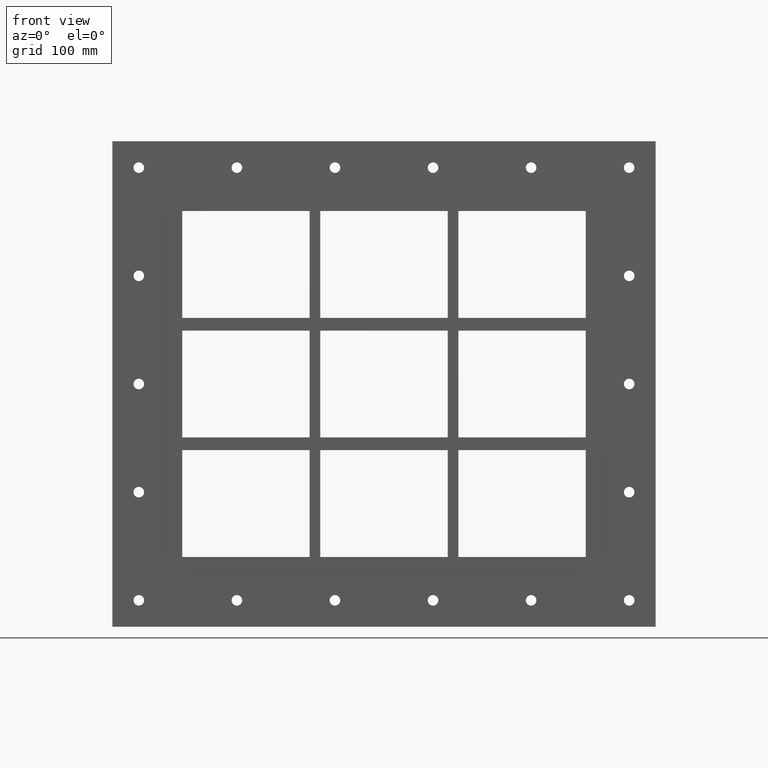
[diagram: clean part render]
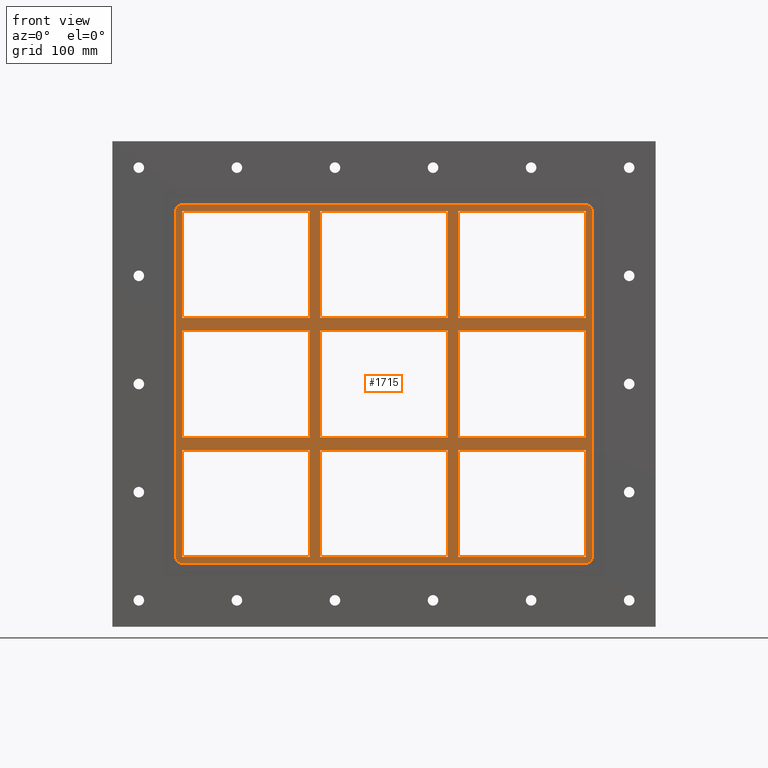
[diagram: same view with one face highlighted and labeled with its STEP entity id]
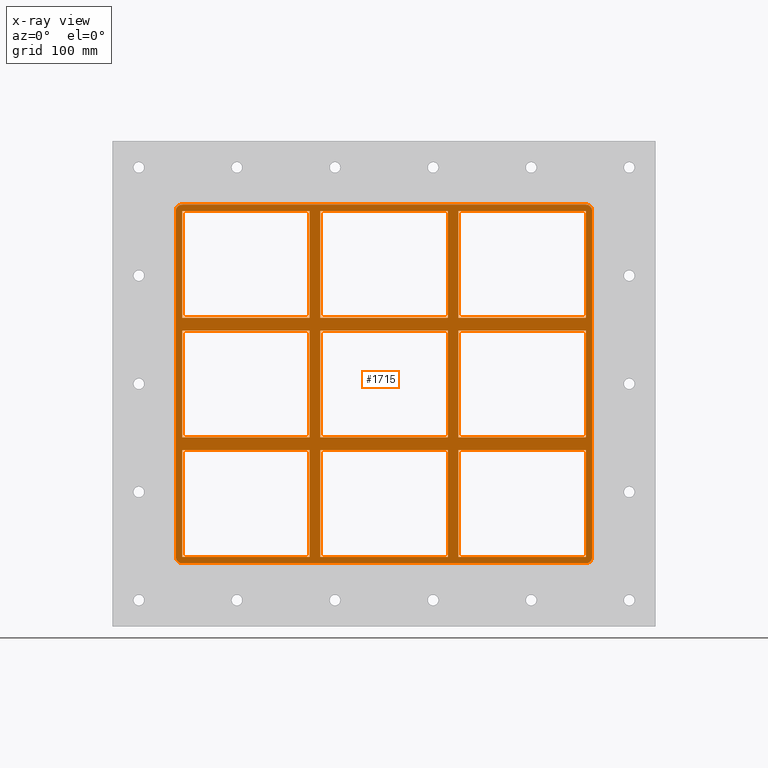
[diagram: x-ray of the same camera — body ghosted, the highlighted face saturated]
A machine part, front view. The second image highlights one B-rep face of the part: STEP entity #1715.
The next image is the same camera in x-ray: the body ghosted, the highlighted face saturated — about 0% of this face is hidden behind the body in this view.
In plain terms, the highlighted planar face has unit normal (0, 1, 0).
Its self-contained STEP definition (entity closure, byte-faithful):
#577=CARTESIAN_POINT('',(-70.250000000001364,-3.0,50.499999999990628));
#578=VERTEX_POINT('',#577);
#587=CARTESIAN_POINT('',(-190.74999999999972,-3.0,50.499999999990628));
#588=VERTEX_POINT('',#587);
#589=CARTESIAN_POINT('',(-70.250000000001364,-3.0,50.499999999990642));
#590=DIRECTION('',(-1.0,0.0,0.0));
#591=VECTOR('',#590,120.49999999999841);
#592=LINE('',#589,#591);
#593=EDGE_CURVE('',#578,#588,#592,.T.);
#619=CARTESIAN_POINT('',(70.250000000003638,-3.0,50.499999999990656));
#620=VERTEX_POINT('',#619);
#635=CARTESIAN_POINT('',(190.74999999999818,-3.0,50.499999999990671));
#636=VERTEX_POINT('',#635);
#643=CARTESIAN_POINT('',(190.74999999999818,-3.0,50.499999999990671));
#644=DIRECTION('',(-1.0,0.0,0.0));
#645=VECTOR('',#644,120.49999999999454);
#646=LINE('',#643,#645);
#647=EDGE_CURVE('',#636,#620,#646,.T.);
#657=CARTESIAN_POINT('',(60.249999999998636,-3.0,50.499999999990656));
#658=VERTEX_POINT('',#657);
#667=CARTESIAN_POINT('',(-60.249999999996362,-3.0,50.499999999990628));
#668=VERTEX_POINT('',#667);
#669=CARTESIAN_POINT('',(60.249999999998636,-3.0,50.499999999990656));
#670=DIRECTION('',(-1.0,0.0,0.0));
#671=VECTOR('',#670,120.499999999995);
#672=LINE('',#669,#671);
#673=EDGE_CURVE('',#658,#668,#672,.T.);
#699=CARTESIAN_POINT('',(-70.250000000001364,-3.0,62.499999999999893));
#700=VERTEX_POINT('',#699);
#715=CARTESIAN_POINT('',(-190.74999999999972,-3.0,62.499999999999893));
#716=VERTEX_POINT('',#715);
#723=CARTESIAN_POINT('',(-190.74999999999972,-3.0,62.499999999999893));
#724=DIRECTION('',(1.0,0.0,0.0));
#725=VECTOR('',#724,120.49999999999834);
#726=LINE('',#723,#725);
#727=EDGE_CURVE('',#716,#700,#726,.T.);
#737=CARTESIAN_POINT('',(70.250000000003638,-3.0,62.499999999999893));
#738=VERTEX_POINT('',#737);
#747=CARTESIAN_POINT('',(190.75,-3.0,62.499999999999893));
#748=VERTEX_POINT('',#747);
#749=CARTESIAN_POINT('',(70.250000000003638,-3.0,62.499999999999893));
#750=DIRECTION('',(1.0,0.0,0.0));
#751=VECTOR('',#750,120.49999999999636);
#752=LINE('',#749,#751);
#753=EDGE_CURVE('',#738,#748,#752,.T.);
#779=CARTESIAN_POINT('',(60.249999999998636,-3.0,62.499999999999893));
#780=VERTEX_POINT('',#779);
#795=CARTESIAN_POINT('',(-60.249999999996362,-3.0,62.499999999999893));
#796=VERTEX_POINT('',#795);
#803=CARTESIAN_POINT('',(-60.249999999996362,-3.0,62.499999999999893));
#804=DIRECTION('',(1.0,0.0,0.0));
#805=VECTOR('',#804,120.499999999995);
#806=LINE('',#803,#805);
#807=EDGE_CURVE('',#796,#780,#806,.T.);
#826=CARTESIAN_POINT('',(-190.75000000000003,-3.0,163.50000000000009));
#827=VERTEX_POINT('',#826);
#834=CARTESIAN_POINT('',(-190.75000000000003,-3.0,62.499999999999901));
#835=DIRECTION('',(0.0,0.0,1.0));
#836=VECTOR('',#835,101.00000000000016);
#837=LINE('',#834,#836);
#838=EDGE_CURVE('',#716,#827,#837,.T.);
#857=CARTESIAN_POINT('',(190.75,-3.0,-50.500000000000114));
#858=VERTEX_POINT('',#857);
#865=CARTESIAN_POINT('',(190.75000000000011,-3.0,50.499999999990678));
#866=DIRECTION('',(0.0,0.0,-1.0));
#867=VECTOR('',#866,100.99999999999079);
#868=LINE('',#865,#867);
#869=EDGE_CURVE('',#636,#858,#868,.T.);
#880=CARTESIAN_POINT('',(190.75000000000011,-3.0,163.50000000000009));
#881=VERTEX_POINT('',#880);
#882=CARTESIAN_POINT('',(190.75000000000011,-3.0,163.50000000000009));
#883=DIRECTION('',(0.0,0.0,-1.0));
#884=VECTOR('',#883,101.00000000000018);
#885=LINE('',#882,#884);
#886=EDGE_CURVE('',#881,#748,#885,.T.);
#911=CARTESIAN_POINT('',(60.249999999998622,-3.0,163.50000000000009));
#912=VERTEX_POINT('',#911);
#913=CARTESIAN_POINT('',(60.249999999998636,-3.0,62.499999999999886));
#914=DIRECTION('',(0.0,0.0,1.0));
#915=VECTOR('',#914,101.0000000000002);
#916=LINE('',#913,#915);
#917=EDGE_CURVE('',#780,#912,#916,.T.);
#950=CARTESIAN_POINT('',(70.250000000003638,-3.0,163.50000000000009));
#951=VERTEX_POINT('',#950);
#958=CARTESIAN_POINT('',(70.250000000003638,-3.0,163.50000000000009));
#959=DIRECTION('',(0.0,0.0,-1.0));
#960=VECTOR('',#959,101.0000000000002);
#961=LINE('',#958,#960);
#962=EDGE_CURVE('',#951,#738,#961,.T.);
#973=CARTESIAN_POINT('',(-70.250000000001393,-3.0,163.50000000000009));
#974=VERTEX_POINT('',#973);
#975=CARTESIAN_POINT('',(-70.250000000001378,-3.0,62.499999999999886));
#976=DIRECTION('',(0.0,0.0,1.0));
#977=VECTOR('',#976,101.0000000000002);
#978=LINE('',#975,#977);
#979=EDGE_CURVE('',#700,#974,#978,.T.);
#1012=CARTESIAN_POINT('',(-70.25000000000135,-3.0,-50.500000000000114));
#1013=VERTEX_POINT('',#1012);
#1020=CARTESIAN_POINT('',(-70.25000000000135,-3.0,-50.500000000000114));
#1021=DIRECTION('',(0.0,0.0,1.0));
#1022=VECTOR('',#1021,100.99999999999073);
#1023=LINE('',#1020,#1022);
#1024=EDGE_CURVE('',#1013,#578,#1023,.T.);
#1043=CARTESIAN_POINT('',(-60.249999999996362,-3.0,163.50000000000009));
#1044=VERTEX_POINT('',#1043);
#1051=CARTESIAN_POINT('',(-60.249999999996362,-3.0,163.50000000000009));
#1052=DIRECTION('',(0.0,0.0,-1.0));
#1053=VECTOR('',#1052,101.0000000000002);
#1054=LINE('',#1051,#1053);
#1055=EDGE_CURVE('',#1044,#796,#1054,.T.);
#1339=CARTESIAN_POINT('',(60.24999999999865,-3.0,-50.500000000000114));
#1340=VERTEX_POINT('',#1339);
#1347=CARTESIAN_POINT('',(60.24999999999865,-3.0,-50.500000000000114));
#1348=DIRECTION('',(0.0,0.0,1.0));
#1349=VECTOR('',#1348,100.99999999999076);
#1350=LINE('',#1347,#1349);
#1351=EDGE_CURVE('',#1340,#658,#1350,.T.);
#1361=CARTESIAN_POINT('',(60.24999999999865,-3.0,-62.500000000009365));
#1362=VERTEX_POINT('',#1361);
#1370=CARTESIAN_POINT('',(60.249999999998671,-3.0,-163.50000000000009));
#1371=VERTEX_POINT('',#1370);
#1378=CARTESIAN_POINT('',(60.249999999998671,-3.0,-163.50000000000009));
#1379=DIRECTION('',(0.0,0.0,1.0));
#1380=VECTOR('',#1379,100.99999999999072);
#1381=LINE('',#1378,#1380);
#1382=EDGE_CURVE('',#1371,#1362,#1381,.T.);
#1393=CARTESIAN_POINT('',(70.250000000003638,-3.0,-50.500000000000114));
#1394=VERTEX_POINT('',#1393);
#1395=CARTESIAN_POINT('',(70.250000000003638,-3.0,50.499999999990663));
#1396=DIRECTION('',(0.0,0.0,-1.0));
#1397=VECTOR('',#1396,100.99999999999078);
#1398=LINE('',#1395,#1397);
#1399=EDGE_CURVE('',#620,#1394,#1398,.T.);
#1416=CARTESIAN_POINT('',(70.250000000003638,-3.0,-62.500000000009344));
#1417=VERTEX_POINT('',#1416);
#1424=CARTESIAN_POINT('',(70.250000000003638,-3.0,-163.49999999998431));
#1425=VERTEX_POINT('',#1424);
#1426=CARTESIAN_POINT('',(70.250000000003638,-3.0,-62.500000000009351));
#1427=DIRECTION('',(0.0,0.0,-1.0));
#1428=VECTOR('',#1427,100.99999999997499);
#1429=LINE('',#1426,#1428);
#1430=EDGE_CURVE('',#1417,#1425,#1429,.T.);
#1449=CARTESIAN_POINT('',(-60.249999999996362,-3.0,-163.49999999998431));
#1450=VERTEX_POINT('',#1449);
#1457=CARTESIAN_POINT('',(60.249999999998678,-3.0,-163.50000000000009));
#1458=DIRECTION('',(-1.0,0.0,0.0));
#1459=VECTOR('',#1458,120.49999999999504);
#1460=LINE('',#1457,#1459);
#1461=EDGE_CURVE('',#1371,#1450,#1460,.T.);
#1472=CARTESIAN_POINT('',(190.75000000000011,-3.0,-163.50000000000009));
#1473=VERTEX_POINT('',#1472);
#1474=CARTESIAN_POINT('',(190.75000000000011,-3.0,-163.50000000000009));
#1475=DIRECTION('',(-1.0,0.0,0.0));
#1476=VECTOR('',#1475,120.49999999999646);
#1477=LINE('',#1474,#1476);
#1478=EDGE_CURVE('',#1473,#1425,#1477,.T.);
#1490=CARTESIAN_POINT('',(0.0,-3.0,0.0));
#1491=DIRECTION('',(0.0,1.0,0.0));
#1492=DIRECTION('',(0.0,0.0,1.0));
#1493=AXIS2_PLACEMENT_3D('',#1490,#1491,#1492);
#1494=PLANE('',#1493);
#1495=CARTESIAN_POINT('',(196.75000000000006,-3.0,-163.5));
#1496=VERTEX_POINT('',#1495);
#1497=CARTESIAN_POINT('',(190.75000000000003,-3.0,-169.50000000000003));
#1498=VERTEX_POINT('',#1497);
#1499=CARTESIAN_POINT('',(190.75000000000003,-3.0,-163.5));
#1500=DIRECTION('',(0.0,1.0,0.0));
#1501=DIRECTION('',(0.707106781186548,0.0,-0.707106781186548));
#1502=AXIS2_PLACEMENT_3D('',#1499,#1500,#1501);
#1503=CIRCLE('',#1502,6.000000000000002);
#1504=EDGE_CURVE('',#1496,#1498,#1503,.T.);
#1505=ORIENTED_EDGE('',*,*,#1504,.F.);
#1506=CARTESIAN_POINT('',(196.75000000000006,-3.0,163.5));
#1507=VERTEX_POINT('',#1506);
#1508=CARTESIAN_POINT('',(196.75000000000006,-3.0,-163.50000000000003));
#1509=DIRECTION('',(0.0,0.0,1.0));
#1510=VECTOR('',#1509,327.0);
#1511=LINE('',#1508,#1510);
#1512=EDGE_CURVE('',#1496,#1507,#1511,.T.);
#1513=ORIENTED_EDGE('',*,*,#1512,.T.);
#1514=CARTESIAN_POINT('',(190.75000000000003,-3.0,169.50000000000003));
#1515=VERTEX_POINT('',#1514);
#1516=CARTESIAN_POINT('',(190.75000000000003,-3.0,163.5));
#1517=DIRECTION('',(0.0,1.0,0.0));
#1518=DIRECTION('',(0.707106781186548,0.0,0.707106781186548));
#1519=AXIS2_PLACEMENT_3D('',#1516,#1517,#1518);
#1520=CIRCLE('',#1519,6.000000000000002);
#1521=EDGE_CURVE('',#1515,#1507,#1520,.T.);
#1522=ORIENTED_EDGE('',*,*,#1521,.F.);
#1523=CARTESIAN_POINT('',(-190.75000000000003,-3.0,169.50000000000003));
#1524=VERTEX_POINT('',#1523);
#1525=CARTESIAN_POINT('',(190.75,-3.0,169.50000000000003));
#1526=DIRECTION('',(-1.0,0.0,0.0));
#1527=VECTOR('',#1526,381.50000000000006);
#1528=LINE('',#1525,#1527);
#1529=EDGE_CURVE('',#1515,#1524,#1528,.T.);
#1530=ORIENTED_EDGE('',*,*,#1529,.T.);
#1531=CARTESIAN_POINT('',(-196.75000000000006,-3.0,163.5));
#1532=VERTEX_POINT('',#1531);
#1533=CARTESIAN_POINT('',(-190.75000000000003,-3.0,163.5));
#1534=DIRECTION('',(0.0,1.0,0.0));
#1535=DIRECTION('',(-0.707106781186548,0.0,0.707106781186548));
#1536=AXIS2_PLACEMENT_3D('',#1533,#1534,#1535);
#1537=CIRCLE('',#1536,6.000000000000002);
#1538=EDGE_CURVE('',#1532,#1524,#1537,.T.);
#1539=ORIENTED_EDGE('',*,*,#1538,.F.);
#1540=CARTESIAN_POINT('',(-196.75000000000006,-3.0,-163.5));
#1541=VERTEX_POINT('',#1540);
#1542=CARTESIAN_POINT('',(-196.75000000000006,-3.0,163.50000000000003));
#1543=DIRECTION('',(0.0,0.0,-1.0));
#1544=VECTOR('',#1543,327.0);
#1545=LINE('',#1542,#1544);
#1546=EDGE_CURVE('',#1532,#1541,#1545,.T.);
#1547=ORIENTED_EDGE('',*,*,#1546,.T.);
#1548=CARTESIAN_POINT('',(-190.75000000000003,-3.0,-169.50000000000003));
#1549=VERTEX_POINT('',#1548);
#1550=CARTESIAN_POINT('',(-190.75000000000003,-3.0,-163.5));
#1551=DIRECTION('',(0.0,1.0,0.0));
#1552=DIRECTION('',(-0.707106781186548,0.0,-0.707106781186548));
#1553=AXIS2_PLACEMENT_3D('',#1550,#1551,#1552);
#1554=CIRCLE('',#1553,6.000000000000002);
#1555=EDGE_CURVE('',#1549,#1541,#1554,.T.);
#1556=ORIENTED_EDGE('',*,*,#1555,.F.);
#1557=CARTESIAN_POINT('',(-190.75,-3.0,-169.50000000000003));
#1558=DIRECTION('',(1.0,0.0,0.0));
#1559=VECTOR('',#1558,381.50000000000006);
#1560=LINE('',#1557,#1559);
#1561=EDGE_CURVE('',#1549,#1498,#1560,.T.);
#1562=ORIENTED_EDGE('',*,*,#1561,.T.);
#1563=EDGE_LOOP('',(#1505,#1513,#1522,#1530,#1539,#1547,#1556,#1562));
#1564=FACE_OUTER_BOUND('',#1563,.T.);
#1565=ORIENTED_EDGE('',*,*,#838,.T.);
#1566=CARTESIAN_POINT('',(-190.75000000000003,-3.0,163.50000000000006));
#1567=DIRECTION('',(1.0,0.0,0.0));
#1568=VECTOR('',#1567,120.49999999999864);
#1569=LINE('',#1566,#1568);
#1570=EDGE_CURVE('',#827,#974,#1569,.T.);
#1571=ORIENTED_EDGE('',*,*,#1570,.T.);
#1572=ORIENTED_EDGE('',*,*,#979,.F.);
#1573=ORIENTED_EDGE('',*,*,#727,.F.);
#1574=EDGE_LOOP('',(#1565,#1571,#1572,#1573));
#1575=FACE_BOUND('',#1574,.T.);
#1576=ORIENTED_EDGE('',*,*,#869,.T.);
#1577=CARTESIAN_POINT('',(70.250000000003638,-3.0,-50.500000000000114));
#1578=DIRECTION('',(1.0,0.0,0.0));
#1579=VECTOR('',#1578,120.49999999999636);
#1580=LINE('',#1577,#1579);
#1581=EDGE_CURVE('',#1394,#858,#1580,.T.);
#1582=ORIENTED_EDGE('',*,*,#1581,.F.);
#1583=ORIENTED_EDGE('',*,*,#1399,.F.);
#1584=ORIENTED_EDGE('',*,*,#647,.F.);
#1585=EDGE_LOOP('',(#1576,#1582,#1583,#1584));
#1586=FACE_BOUND('',#1585,.T.);
#1587=ORIENTED_EDGE('',*,*,#1351,.F.);
#1588=CARTESIAN_POINT('',(-60.249999999996362,-3.0,-50.500000000000114));
#1589=VERTEX_POINT('',#1588);
#1590=CARTESIAN_POINT('',(-60.249999999996362,-3.0,-50.500000000000114));
#1591=DIRECTION('',(1.0,0.0,0.0));
#1592=VECTOR('',#1591,120.49999999999503);
#1593=LINE('',#1590,#1592);
#1594=EDGE_CURVE('',#1589,#1340,#1593,.T.);
#1595=ORIENTED_EDGE('',*,*,#1594,.F.);
#1596=CARTESIAN_POINT('',(-60.249999999996362,-3.0,50.499999999990621));
#1597=DIRECTION('',(0.0,0.0,-1.0));
#1598=VECTOR('',#1597,100.99999999999073);
#1599=LINE('',#1596,#1598);
#1600=EDGE_CURVE('',#668,#1589,#1599,.T.);
#1601=ORIENTED_EDGE('',*,*,#1600,.F.);
#1602=ORIENTED_EDGE('',*,*,#673,.F.);
#1603=EDGE_LOOP('',(#1587,#1595,#1601,#1602));
#1604=FACE_BOUND('',#1603,.T.);
#1605=ORIENTED_EDGE('',*,*,#807,.F.);
#1606=ORIENTED_EDGE('',*,*,#1055,.F.);
#1607=CARTESIAN_POINT('',(-60.249999999996362,-3.0,163.50000000000006));
#1608=DIRECTION('',(1.0,0.0,0.0));
#1609=VECTOR('',#1608,120.49999999999498);
#1610=LINE('',#1607,#1609);
#1611=EDGE_CURVE('',#1044,#912,#1610,.T.);
#1612=ORIENTED_EDGE('',*,*,#1611,.T.);
#1613=ORIENTED_EDGE('',*,*,#917,.F.);
#1614=EDGE_LOOP('',(#1605,#1606,#1612,#1613));
#1615=FACE_BOUND('',#1614,.T.);
#1616=ORIENTED_EDGE('',*,*,#593,.F.);
#1617=ORIENTED_EDGE('',*,*,#1024,.F.);
#1618=CARTESIAN_POINT('',(-190.74999999999972,-3.0,-50.500000000000114));
#1619=VERTEX_POINT('',#1618);
#1620=CARTESIAN_POINT('',(-190.74999999999972,-3.0,-50.500000000000114));
#1621=DIRECTION('',(1.0,0.0,0.0));
#1622=VECTOR('',#1621,120.49999999999835);
#1623=LINE('',#1620,#1622);
#1624=EDGE_CURVE('',#1619,#1013,#1623,.T.);
#1625=ORIENTED_EDGE('',*,*,#1624,.F.);
#1626=CARTESIAN_POINT('',(-190.75000000000003,-3.0,-50.500000000000114));
#1627=DIRECTION('',(0.0,0.0,1.0));
#1628=VECTOR('',#1627,100.99999999999075);
#1629=LINE('',#1626,#1628);
#1630=EDGE_CURVE('',#1619,#588,#1629,.T.);
#1631=ORIENTED_EDGE('',*,*,#1630,.T.);
#1632=EDGE_LOOP('',(#1616,#1617,#1625,#1631));
#1633=FACE_BOUND('',#1632,.T.);
#1634=ORIENTED_EDGE('',*,*,#753,.F.);
#1635=ORIENTED_EDGE('',*,*,#962,.F.);
#1636=CARTESIAN_POINT('',(70.250000000003652,-3.0,163.50000000000006));
#1637=DIRECTION('',(1.0,0.0,0.0));
#1638=VECTOR('',#1637,120.49999999999646);
#1639=LINE('',#1636,#1638);
#1640=EDGE_CURVE('',#951,#881,#1639,.T.);
#1641=ORIENTED_EDGE('',*,*,#1640,.T.);
#1642=ORIENTED_EDGE('',*,*,#886,.T.);
#1643=EDGE_LOOP('',(#1634,#1635,#1641,#1642));
#1644=FACE_BOUND('',#1643,.T.);
#1645=ORIENTED_EDGE('',*,*,#1461,.T.);
#1646=CARTESIAN_POINT('',(-60.249999999996362,-3.0,-62.500000000009365));
#1647=VERTEX_POINT('',#1646);
#1648=CARTESIAN_POINT('',(-60.249999999996362,-3.0,-62.500000000009379));
#1649=DIRECTION('',(0.0,0.0,-1.0));
#1650=VECTOR('',#1649,100.99999999997496);
#1651=LINE('',#1648,#1650);
#1652=EDGE_CURVE('',#1647,#1450,#1651,.T.);
#1653=ORIENTED_EDGE('',*,*,#1652,.F.);
#1654=CARTESIAN_POINT('',(60.249999999998664,-3.0,-62.500000000009351));
#1655=DIRECTION('',(-1.0,0.0,0.0));
#1656=VECTOR('',#1655,120.49999999999503);
#1657=LINE('',#1654,#1656);
#1658=EDGE_CURVE('',#1362,#1647,#1657,.T.);
#1659=ORIENTED_EDGE('',*,*,#1658,.F.);
#1660=ORIENTED_EDGE('',*,*,#1382,.F.);
#1661=EDGE_LOOP('',(#1645,#1653,#1659,#1660));
#1662=FACE_BOUND('',#1661,.T.);
#1663=ORIENTED_EDGE('',*,*,#1430,.F.);
#1664=CARTESIAN_POINT('',(190.74999999999818,-3.0,-62.500000000009337));
#1665=VERTEX_POINT('',#1664);
#1666=CARTESIAN_POINT('',(190.74999999999818,-3.0,-62.500000000009337));
#1667=DIRECTION('',(-1.0,0.0,0.0));
#1668=VECTOR('',#1667,120.49999999999454);
#1669=LINE('',#1666,#1668);
#1670=EDGE_CURVE('',#1665,#1417,#1669,.T.);
#1671=ORIENTED_EDGE('',*,*,#1670,.F.);
#1672=CARTESIAN_POINT('',(190.75000000000011,-3.0,-62.500000000009322));
#1673=DIRECTION('',(0.0,0.0,-1.0));
#1674=VECTOR('',#1673,100.99999999999076);
#1675=LINE('',#1672,#1674);
#1676=EDGE_CURVE('',#1665,#1473,#1675,.T.);
#1677=ORIENTED_EDGE('',*,*,#1676,.T.);
#1678=ORIENTED_EDGE('',*,*,#1478,.T.);
#1679=EDGE_LOOP('',(#1663,#1671,#1677,#1678));
#1680=FACE_BOUND('',#1679,.T.);
#1681=CARTESIAN_POINT('',(-70.250000000001336,-3.0,-62.500000000009365));
#1682=VERTEX_POINT('',#1681);
#1683=CARTESIAN_POINT('',(-190.74999999999972,-3.0,-62.500000000009379));
#1684=VERTEX_POINT('',#1683);
#1685=CARTESIAN_POINT('',(-70.250000000001364,-3.0,-62.500000000009365));
#1686=DIRECTION('',(-1.0,0.0,0.0));
#1687=VECTOR('',#1686,120.49999999999841);
#1688=LINE('',#1685,#1687);
#1689=EDGE_CURVE('',#1682,#1684,#1688,.T.);
#1690=ORIENTED_EDGE('',*,*,#1689,.F.);
#1691=CARTESIAN_POINT('',(-70.250000000001336,-3.0,-163.50000000000009));
#1692=VERTEX_POINT('',#1691);
#1693=CARTESIAN_POINT('',(-70.250000000001336,-3.0,-163.50000000000009));
#1694=DIRECTION('',(0.0,0.0,1.0));
#1695=VECTOR('',#1694,100.99999999999072);
#1696=LINE('',#1693,#1695);
#1697=EDGE_CURVE('',#1692,#1682,#1696,.T.);
#1698=ORIENTED_EDGE('',*,*,#1697,.F.);
#1699=CARTESIAN_POINT('',(-190.75000000000003,-3.0,-163.50000000000009));
#1700=VERTEX_POINT('',#1699);
#1701=CARTESIAN_POINT('',(-70.250000000001336,-3.0,-163.50000000000009));
#1702=DIRECTION('',(-1.0,0.0,0.0));
#1703=VECTOR('',#1702,120.49999999999866);
#1704=LINE('',#1701,#1703);
#1705=EDGE_CURVE('',#1692,#1700,#1704,.T.);
#1706=ORIENTED_EDGE('',*,*,#1705,.T.);
#1707=CARTESIAN_POINT('',(-190.75000000000003,-3.0,-163.50000000000009));
#1708=DIRECTION('',(0.0,0.0,1.0));
#1709=VECTOR('',#1708,100.99999999999071);
#1710=LINE('',#1707,#1709);
#1711=EDGE_CURVE('',#1700,#1684,#1710,.T.);
#1712=ORIENTED_EDGE('',*,*,#1711,.T.);
#1713=EDGE_LOOP('',(#1690,#1698,#1706,#1712));
#1714=FACE_BOUND('',#1713,.T.);
#1715=ADVANCED_FACE('',(#1564,#1575,#1586,#1604,#1615,#1633,#1644,#1662,#1680,#1714),#1494,.F.);